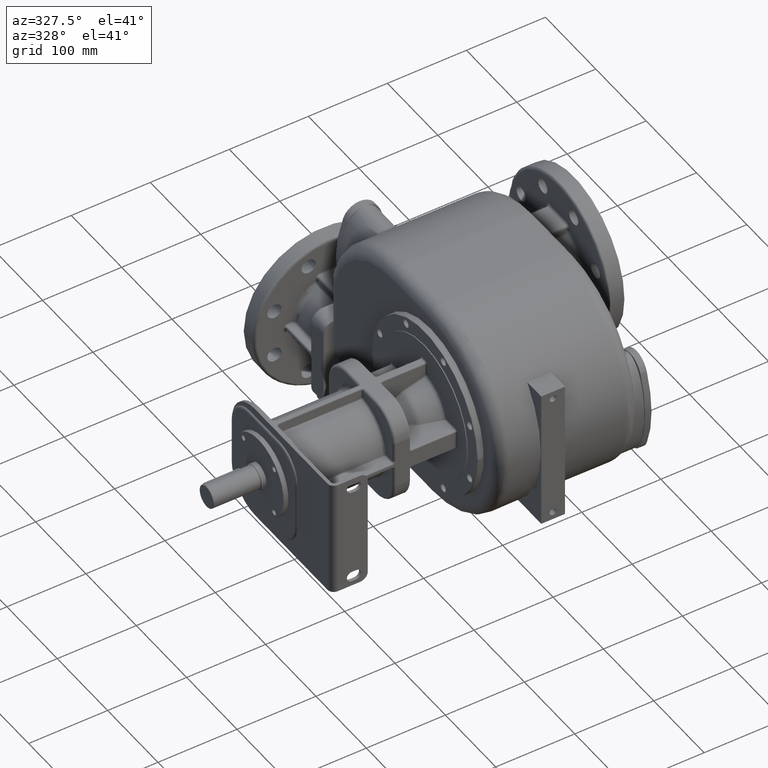
[diagram: clean part render]
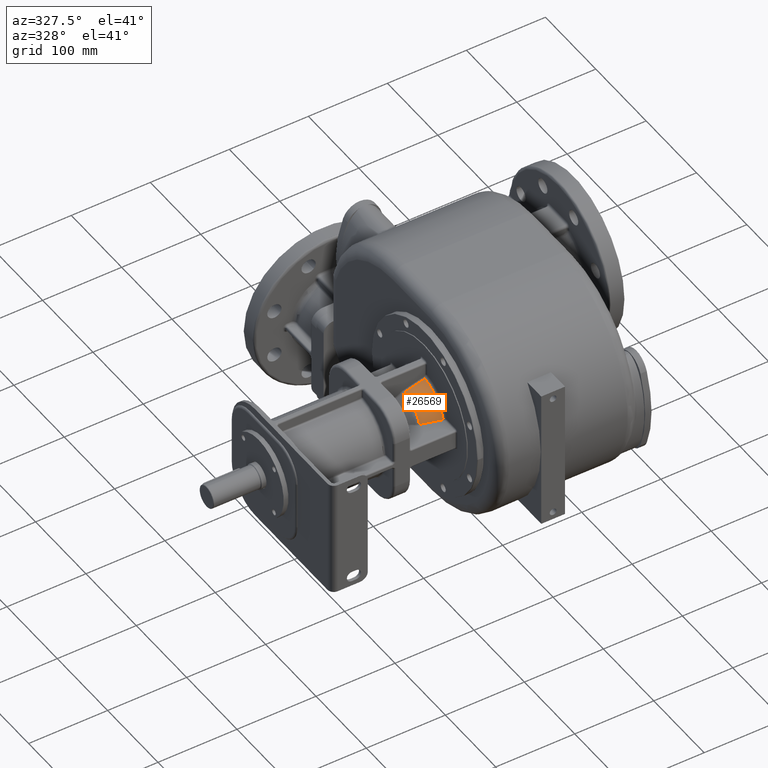
[diagram: same view with one face highlighted and labeled with its STEP entity id]
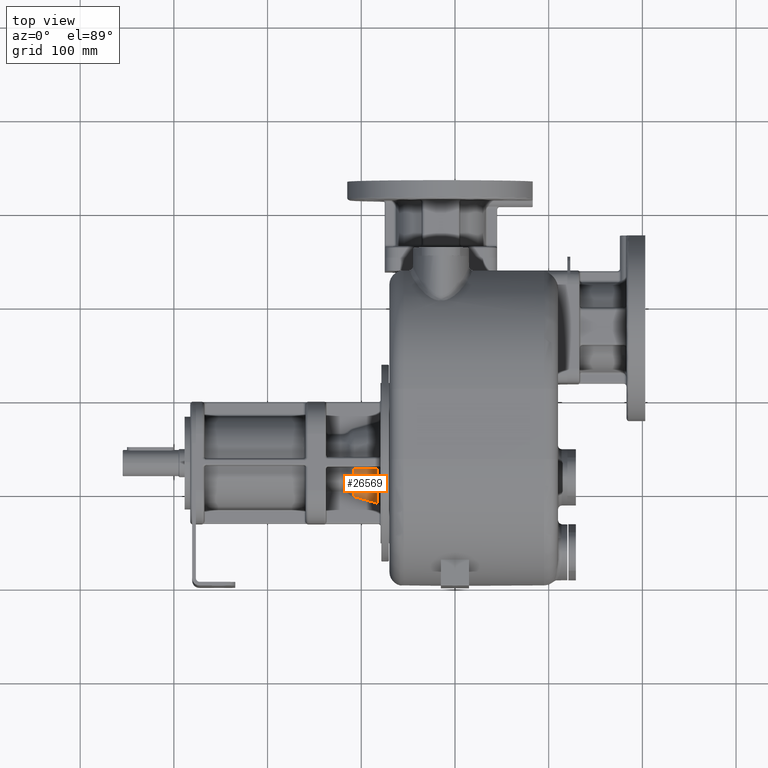
[diagram: same view with one face highlighted and labeled with its STEP entity id]
A machine part, auxiliary view. The second image highlights one B-rep face of the part: STEP entity #26569.
A second angle (top view) of the same face is appended — the face is thin or edge-on in the first view.
In plain terms, the highlighted conical surface has half-angle 15 deg.
Its self-contained STEP definition (entity closure, byte-faithful):
#7983=CARTESIAN_POINT('',(-1.077919797121E2,1.253339857502E2,3.797720814782E1));
#7984=CARTESIAN_POINT('',(-1.052819041962E2,1.253284379259E2,3.865908934437E1));
#7985=CARTESIAN_POINT('',(-1.000605362412E2,1.253174573417E2,4.007660245092E1));
#7986=CARTESIAN_POINT('',(-9.174331332481E1,1.253016472715E2,4.233183516246E1));
#7987=CARTESIAN_POINT('',(-8.563786928298E1,1.252911864376E2,4.398546457421E1));
#7988=CARTESIAN_POINT('',(-8.246472442751E1,1.252860420730E2,4.484441227073E1));
#7990=CARTESIAN_POINT('',(-8.246472381959E1,1.32E2,0.E0));
#7991=DIRECTION('',(-1.E0,0.E0,0.E0));
#7992=DIRECTION('',(0.E0,-9.518033138098E-1,3.067090670664E-1));
#7993=AXIS2_PLACEMENT_3D('',#7990,#7991,#7992);
#7995=CARTESIAN_POINT('',(-8.246472453646E1,8.884121807242E1,1.390748440218E1));
#7996=CARTESIAN_POINT('',(-8.487678913311E1,8.951764587739E1,1.389938407874E1));
#7997=CARTESIAN_POINT('',(-8.953796598573E1,9.082738205405E1,1.388306137960E1));
#7998=CARTESIAN_POINT('',(-9.599777853921E1,9.264976642997E1,1.385857338127E1));
#7999=CARTESIAN_POINT('',(-1.020563685715E2,9.436609592198E1,1.383378764111E1));
#8000=CARTESIAN_POINT('',(-1.059149995237E2,9.546410096881E1,1.381676572576E1));
#8001=CARTESIAN_POINT('',(-1.077919796824E2,9.599946593578E1,1.380817233494E1));
#8003=CARTESIAN_POINT('',(-1.077919799427E2,1.32E2,0.E0));
#8004=DIRECTION('',(1.E0,0.E0,0.E0));
#8005=DIRECTION('',(0.E0,-1.728836688643E-1,9.849422506117E-1));
#8006=AXIS2_PLACEMENT_3D('',#8003,#8004,#8005);
#13686=VERTEX_POINT('',#7983);
#13687=VERTEX_POINT('',#7988);
#13728=VERTEX_POINT('',#7995);
#13729=VERTEX_POINT('',#8001);
#26555=CARTESIAN_POINT('',(-9.512835188115E1,1.32E2,0.E0));
#26556=DIRECTION('',(1.E0,0.E0,0.E0));
#26557=DIRECTION('',(0.E0,-1.E0,0.E0));
#26558=AXIS2_PLACEMENT_3D('',#26555,#26556,#26557);
#26559=CONICAL_SURFACE('',#26558,4.195101163825E1,1.5E1);
#26561=ORIENTED_EDGE('',*,*,#26560,.T.);
#26562=ORIENTED_EDGE('',*,*,#26546,.F.);
#26564=ORIENTED_EDGE('',*,*,#26563,.T.);
#26566=ORIENTED_EDGE('',*,*,#26565,.F.);
#26567=EDGE_LOOP('',(#26561,#26562,#26564,#26566));
#26568=FACE_OUTER_BOUND('',#26567,.F.);
#26569=ADVANCED_FACE('',(#26568),#26559,.T.);
#7989=B_SPLINE_CURVE_WITH_KNOTS('',3,(#7983,#7984,#7985,#7986,#7987,#7988),
.UNSPECIFIED.,.F.,.F.,(4,1,1,4),(0.E0,3.333333333333E-1,6.666666666667E-1,1.E0),
.UNSPECIFIED.);
#7994=CIRCLE('',#7993,4.534422055059E1);
#8002=B_SPLINE_CURVE_WITH_KNOTS('',3,(#7995,#7996,#7997,#7998,#7999,#8000,
#8001),.UNSPECIFIED.,.F.,.F.,(4,1,1,1,4),(0.E0,2.5E-1,5.E-1,7.5E-1,1.E0),
.UNSPECIFIED.);
#8007=CIRCLE('',#8006,3.855780272591E1);
#26546=EDGE_CURVE('',#13728,#13687,#7994,.T.);
#26560=EDGE_CURVE('',#13686,#13687,#7989,.T.);
#26563=EDGE_CURVE('',#13728,#13729,#8002,.T.);
#26565=EDGE_CURVE('',#13686,#13729,#8007,.T.);